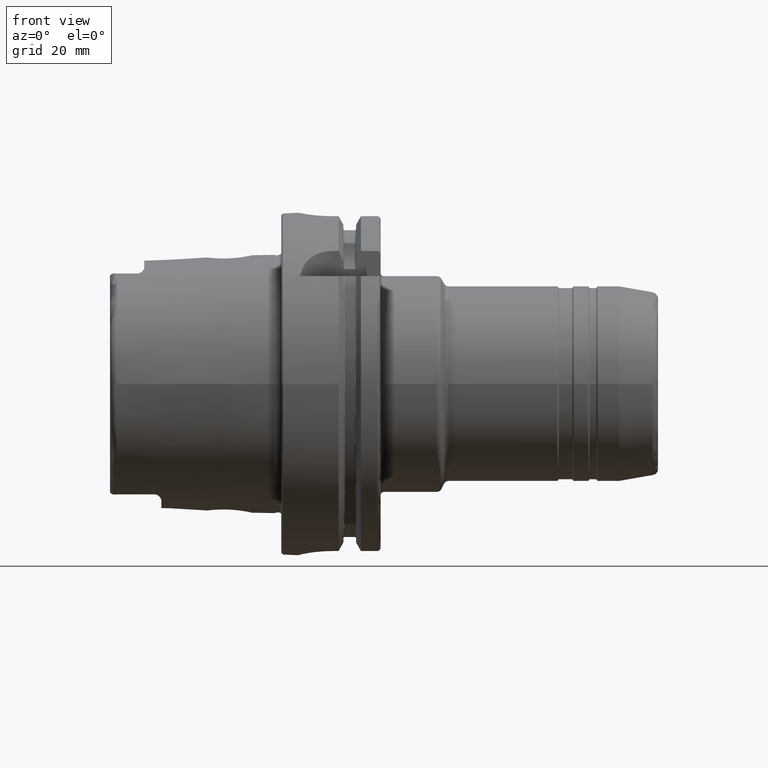
[diagram: clean part render]
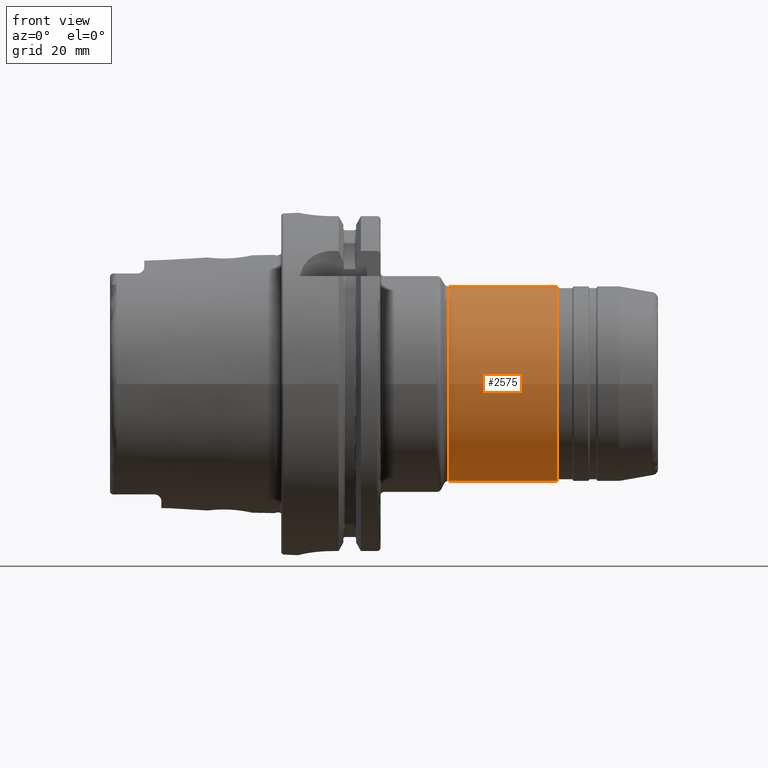
[diagram: same view with one face highlighted and labeled with its STEP entity id]
A machine part, front view. The second image highlights one B-rep face of the part: STEP entity #2575.
In plain terms, the highlighted cylindrical surface (bore or boss wall) has radius 28.5 mm, axis along (1, 0, 0).
Its self-contained STEP definition (entity closure, byte-faithful):
#97=CYLINDRICAL_SURFACE('',#2801,28.5);
#191=LINE('',#4119,#306);
#306=VECTOR('',#3279,28.5);
#451=FACE_OUTER_BOUND('',#588,.T.);
#588=EDGE_LOOP('',(#1817,#1818,#1819,#1820,#1821,#1822,#1823,#1824));
#782=CIRCLE('',#2798,28.5);
#783=CIRCLE('',#2799,28.5);
#784=CIRCLE('',#2800,28.5);
#785=CIRCLE('',#2802,28.5);
#786=CIRCLE('',#2803,28.5);
#787=CIRCLE('',#2804,28.5);
#1007=VERTEX_POINT('',#4110);
#1008=VERTEX_POINT('',#4112);
#1009=VERTEX_POINT('',#4114);
#1010=VERTEX_POINT('',#4118);
#1011=VERTEX_POINT('',#4120);
#1012=VERTEX_POINT('',#4122);
#1321=EDGE_CURVE('',#1007,#1008,#782,.T.);
#1322=EDGE_CURVE('',#1008,#1009,#783,.T.);
#1323=EDGE_CURVE('',#1009,#1007,#784,.T.);
#1324=EDGE_CURVE('',#1008,#1010,#191,.T.);
#1325=EDGE_CURVE('',#1011,#1010,#785,.T.);
#1326=EDGE_CURVE('',#1012,#1011,#786,.T.);
#1327=EDGE_CURVE('',#1010,#1012,#787,.T.);
#1817=ORIENTED_EDGE('',*,*,#1323,.F.);
#1818=ORIENTED_EDGE('',*,*,#1322,.F.);
#1819=ORIENTED_EDGE('',*,*,#1324,.T.);
#1820=ORIENTED_EDGE('',*,*,#1325,.F.);
#1821=ORIENTED_EDGE('',*,*,#1326,.F.);
#1822=ORIENTED_EDGE('',*,*,#1327,.F.);
#1823=ORIENTED_EDGE('',*,*,#1324,.F.);
#1824=ORIENTED_EDGE('',*,*,#1321,.F.);
#2575=ADVANCED_FACE('',(#451),#97,.T.);
#2798=AXIS2_PLACEMENT_3D('',#4113,#3271,#3272);
#2799=AXIS2_PLACEMENT_3D('',#4115,#3273,#3274);
#2800=AXIS2_PLACEMENT_3D('',#4116,#3275,#3276);
#2801=AXIS2_PLACEMENT_3D('',#4117,#3277,#3278);
#2802=AXIS2_PLACEMENT_3D('',#4121,#3280,#3281);
#2803=AXIS2_PLACEMENT_3D('',#4123,#3282,#3283);
#2804=AXIS2_PLACEMENT_3D('',#4124,#3284,#3285);
#3271=DIRECTION('center_axis',(1.,0.,0.));
#3272=DIRECTION('ref_axis',(0.,-1.,1.83697019872103E-16));
#3273=DIRECTION('center_axis',(1.,0.,0.));
#3274=DIRECTION('ref_axis',(0.,-1.,1.83697019872103E-16));
#3275=DIRECTION('center_axis',(1.,0.,0.));
#3276=DIRECTION('ref_axis',(0.,-1.,1.83697019872103E-16));
#3277=DIRECTION('center_axis',(1.,0.,0.));
#3278=DIRECTION('ref_axis',(0.,1.,0.));
#3279=DIRECTION('',(-1.,0.,0.));
#3280=DIRECTION('center_axis',(-1.,0.,0.));
#3281=DIRECTION('ref_axis',(0.,-1.,1.83697019872103E-16));
#3282=DIRECTION('center_axis',(-1.,0.,0.));
#3283=DIRECTION('ref_axis',(0.,-1.,1.83697019872103E-16));
#3284=DIRECTION('center_axis',(-1.,0.,0.));
#3285=DIRECTION('ref_axis',(0.,-1.,1.83697019872103E-16));
#4110=CARTESIAN_POINT('',(80.4803847577293,-3.49024337756996E-15,28.5));
#4112=CARTESIAN_POINT('',(80.4803847577293,-28.5,-3.49024337756996E-15));
#4113=CARTESIAN_POINT('Origin',(80.4803847577293,0.,0.));
#4114=CARTESIAN_POINT('',(80.4803847577293,28.5,-1.74512168878498E-15));
#4115=CARTESIAN_POINT('Origin',(80.4803847577293,0.,0.));
#4116=CARTESIAN_POINT('Origin',(80.4803847577293,0.,0.));
#4117=CARTESIAN_POINT('Origin',(64.3556624327026,0.,0.));
#4118=CARTESIAN_POINT('',(48.8660254037844,-28.5,-3.49024337756996E-15));
#4119=CARTESIAN_POINT('',(64.3556624327026,-28.5,-3.49024337756996E-15));
#4120=CARTESIAN_POINT('',(48.8660254037844,28.5,-8.72560844392489E-15));
#4121=CARTESIAN_POINT('Origin',(48.8660254037844,0.,0.));
#4122=CARTESIAN_POINT('',(48.8660254037844,-3.49024337756996E-15,28.5));
#4123=CARTESIAN_POINT('Origin',(48.8660254037844,0.,0.));
#4124=CARTESIAN_POINT('Origin',(48.8660254037844,0.,0.));